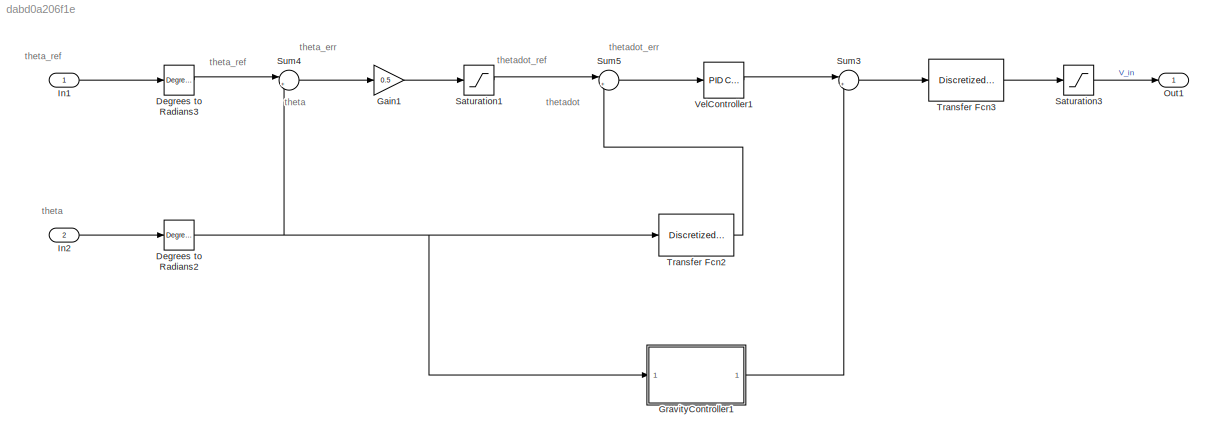
MODEL slx_dabd0a206f1e
KIND model
CONFIG AbsTol = auto
CONFIG EnableMultiTasking = off
CONFIG FixedStep = 0.01
CONFIG MaxStep = auto
CONFIG MinStep = auto
CONFIG RelTol = 1e-3
CONFIG SampleTimeConstraint = Unconstrained
CONFIG Solver = FixedStepDiscrete
CONFIG SolverName = FixedStepDiscrete
CONFIG StartTime = 0.0
CONFIG StopTime = 10.0
BLOCK [Reference] Degrees to Radians2  REF=simulink_extras/Transformations/Degrees to
Radians
  Ports = [1, 1]
  SourceBlock = simulink_extras/Transformations/Degrees to\nRadians
  SourceProductBaseCode = SL
  SourceProductName = Simulink
  SourceType = DegreesToRadians
BLOCK [Reference] Degrees to Radians3  REF=simulink_extras/Transformations/Degrees to
Radians
  Ports = [1, 1]
  SourceBlock = simulink_extras/Transformations/Degrees to\nRadians
  SourceProductBaseCode = SL
  SourceProductName = Simulink
  SourceType = DegreesToRadians
BLOCK [Gain] Gain1
  Gain = 0.5
  OutDataTypeStr = Inherit: Inherit via internal rule
  ParamDataTypeStr = Inherit: Inherit via internal rule
  SaturateOnIntegerOverflow = off
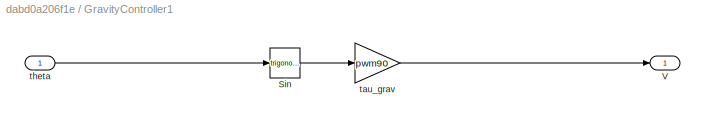
BLOCK [SubSystem] GravityController1
  Ports = [1, 1]
  RequestExecContextInheritance = off
BLOCK [Trigonometry] GravityController1/Sin
  Ports = [1, 1]
BLOCK [Outport] GravityController1/V
  IconDisplay = Port number
BLOCK [Gain] GravityController1/tau_grav
  Gain = pwm90
  OutDataTypeStr = Inherit: Inherit via internal rule
  ParamDataTypeStr = Inherit: Inherit via internal rule
  SaturateOnIntegerOverflow = off
BLOCK [Inport] GravityController1/theta
  IconDisplay = Port number
BLOCK [Inport] In1
  IconDisplay = Port number
BLOCK [Inport] In2
  IconDisplay = Port number
  Port = 2
BLOCK [Outport] Out1
  IconDisplay = Port number
BLOCK [Saturate] Saturation1
  InputPortMap = u0
  LowerLimit = -0.1
  Ports = [1, 1]
  UpperLimit = 0.1
BLOCK [Saturate] Saturation3
  InputPortMap = u0
  LowerLimit = -10
  Ports = [1, 1]
  UpperLimit = 10
BLOCK [Sum] Sum3
  IconShape = round
  InputSameDT = off
  Inputs = |++
  OutDataTypeStr = Inherit: Inherit via internal rule
  Ports = [2, 1]
  SaturateOnIntegerOverflow = off
BLOCK [Sum] Sum4
  IconShape = round
  InputSameDT = off
  Inputs = |+-
  OutDataTypeStr = Inherit: Inherit via internal rule
  Ports = [2, 1]
  SaturateOnIntegerOverflow = off
BLOCK [Sum] Sum5
  IconShape = round
  InputSameDT = off
  Inputs = |+-
  OutDataTypeStr = Inherit: Inherit via internal rule
  Ports = [2, 1]
  SaturateOnIntegerOverflow = off
BLOCK [Reference] Transfer Fcn2  REF=discretizing/Discretized  (lib defined in mdl_5048aa1cd587)
Transfer Fcn
  Ports = [1, 1]
  SourceBlock = discretizing/Discretized\nTransfer Fcn
  SourceType = DiscretizedTransferFcn
BLOCK [Reference] Transfer Fcn3  REF=discretizing/Discretized  (lib defined in mdl_5048aa1cd587)
Transfer Fcn
  Ports = [1, 1]
  SourceBlock = discretizing/Discretized\nTransfer Fcn
  SourceType = DiscretizedTransferFcn
BLOCK [Reference] VelController1  REF=simulink/Continuous/PID Controller
  Ports = [1, 1]
  SourceBlock = simulink/Continuous/PID Controller
  SourceProductBaseCode = SL
  SourceProductName = Simulink
  SourceType = PID 1dof
ANNOTATION (root): theta
ANNOTATION (root): theta_err
ANNOTATION (root): theta_ref
ANNOTATION (root): thetadot
ANNOTATION (root): thetadot_err
ANNOTATION (root): thetadot_ref
NET Degrees to Radians2:1 -> GravityController1:1, Sum4:2, Transfer Fcn2:1
LINE Degrees to Radians3:1 -> Sum4:1
LINE Gain1:1 -> Saturation1:1
LINE GravityController1/Sin:1 -> GravityController1/tau_grav:1
LINE GravityController1/tau_grav:1 -> GravityController1/V:1
LINE GravityController1/theta:1 -> GravityController1/Sin:1
LINE GravityController1:1 -> Sum3:2
LINE In1:1 -> Degrees to Radians3:1
LINE In2:1 -> Degrees to Radians2:1
LINE Saturation1:1 -> Sum5:1
LINE Saturation3:1 -> Out1:1
LINE Sum3:1 -> Transfer Fcn3:1
LINE Sum4:1 -> Gain1:1
LINE Sum5:1 -> VelController1:1
LINE Transfer Fcn2:1 -> Sum5:2
LINE Transfer Fcn3:1 -> Saturation3:1
LINE VelController1:1 -> Sum3:1
note: NET lines group one-source signal fan-out (src -> all destinations, sorted); 1:1 wires keep LINE
